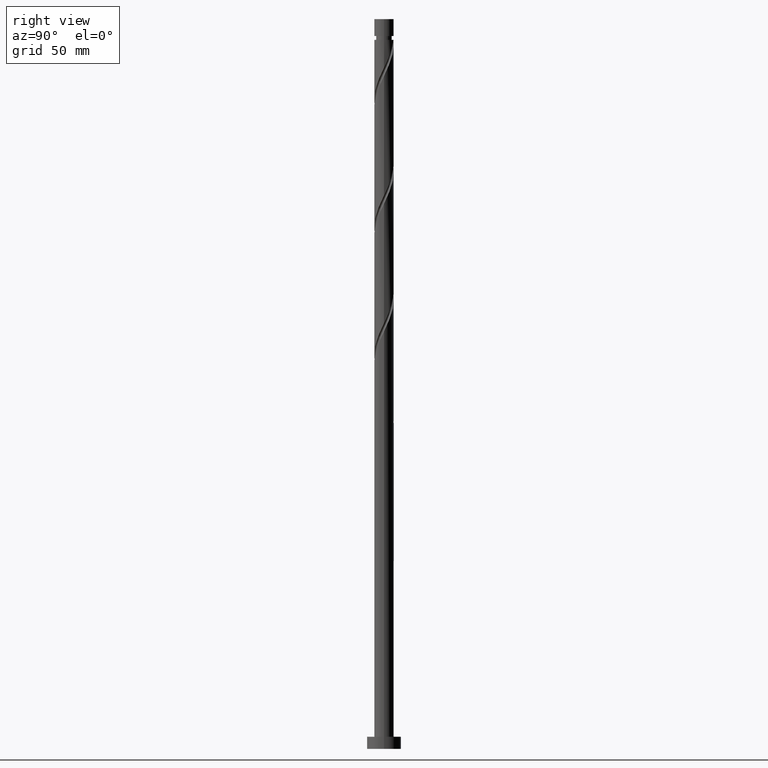
[diagram: clean part render]
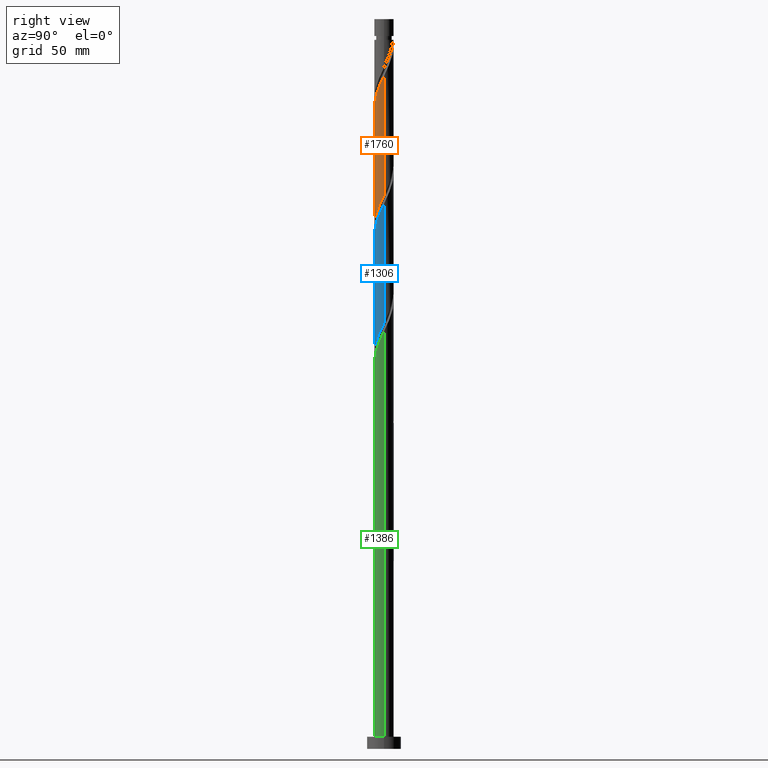
[diagram: same view with three faces highlighted in distinct colors, each labeled with its STEP entity id]
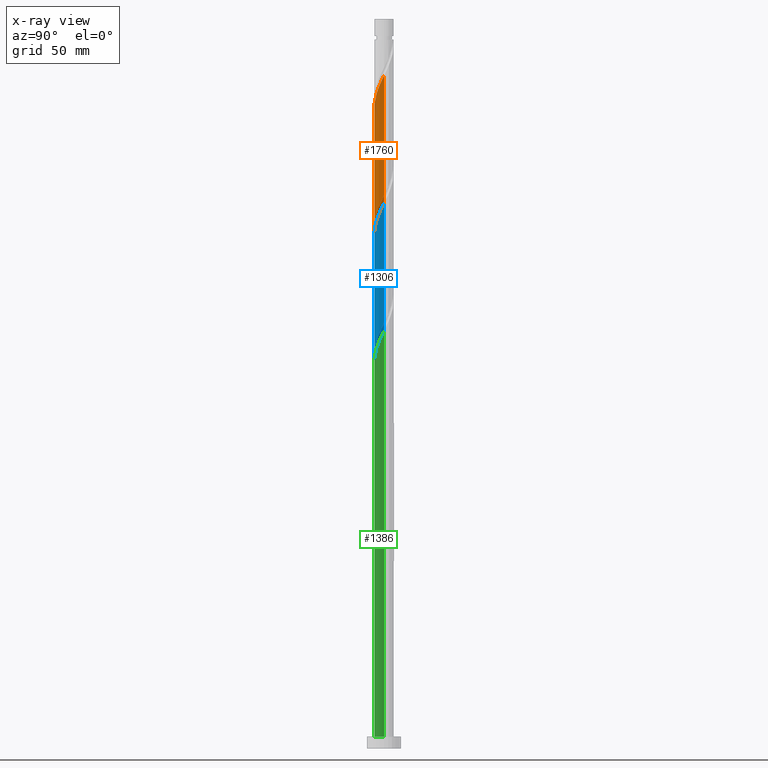
[diagram: x-ray of the same camera — body ghosted, the three highlighted faces saturated]
A machine part, right view with three faces highlighted in distinct colors.
The next image is the same camera in x-ray (body ghosted, the three faces saturated) — at least one of them is partly hidden behind the body in this view.
Their STEP definitions:

[orange] entity #1760 — the highlighted cylindrical surface (edge-blend (fillet) strip) has radius 4 mm, axis along (-0, -0, -1).
#11 = VERTEX_POINT ( 'NONE', #677 ) ;
#25 = CARTESIAN_POINT ( 'NONE',  ( -3.766332957902735590, -1.420513679056759626, 204.2666729475623697 ) ) ;
#28 = ORIENTED_EDGE ( 'NONE', *, *, #444, .F. ) ;
#49 = CARTESIAN_POINT ( 'NONE',  ( 3.066410025678347306, -2.568487795263851847, 270.8291729475624265 ) ) ;
#51 = CARTESIAN_POINT ( 'NONE',  ( -2.222986362731496524, -3.355809096668280755, 258.6416729475624265 ) ) ;
#63 = CARTESIAN_POINT ( 'NONE',  ( -3.999999999999998224, 2.194088707664344929E-15, 201.2536900254683871 ) ) ;
#75 = CARTESIAN_POINT ( 'NONE',  ( -2.777010954688412969, -2.913989227796199177, 208.0166729475624265 ) ) ;
#162 = CARTESIAN_POINT ( 'NONE',  ( -4.000000000000000000, 0.000000000000000000, 300.0000000000000000 ) ) ;
#170 = CARTESIAN_POINT ( 'NONE',  ( -1.237667874093733467, -3.830313472238014771, 211.7666729475623981 ) ) ;
#191 = CARTESIAN_POINT ( 'NONE',  ( -2.913989227796204950, -2.777010954688416078, 256.7666729475624265 ) ) ;
#204 = CARTESIAN_POINT ( 'NONE',  ( -2.417986421170494449, -3.186430866508027648, 208.9541729475624265 ) ) ;
#205 = CARTESIAN_POINT ( 'NONE',  ( -3.458872505219861004, -2.058961887652579037, 254.8916729475624265 ) ) ;
#235 = ORIENTED_EDGE ( 'NONE', *, *, #1581, .F. ) ;
#270 = CARTESIAN_POINT ( 'NONE',  ( 4.000000000000000000, 4.898587196589412829E-16, 300.0000000000000000 ) ) ;
#302 = CARTESIAN_POINT ( 'NONE',  ( 3.877165057846941654, -0.9836620935111636266, 274.5791729475624265 ) ) ;
#327 = CARTESIAN_POINT ( 'NONE',  ( 3.458872505219854787, -2.058961887652576817, 223.0166729475624265 ) ) ;
#334 = CARTESIAN_POINT ( 'NONE',  ( -0.09624924134435075551, -3.998841842776565958, 263.3291729475624265 ) ) ;
#348 = CARTESIAN_POINT ( 'NONE',  ( -0.7959899496852986811, -3.919999999999999041, 212.7041729475624265 ) ) ;
#349 = CARTESIAN_POINT ( 'NONE',  ( -3.830313472238021433, -1.237667874093734577, 253.0166729475624265 ) ) ;
#443 = CARTESIAN_POINT ( 'NONE',  ( -4.000000000000005329, 4.955356809146651200E-15, 250.4046558696563238 ) ) ;
#444 = EDGE_CURVE ( 'NONE', #1253, #11, #839, .T. ) ;
#452 = CARTESIAN_POINT ( 'NONE',  ( 4.000000000000003553, -0.04813158866557803311, 276.5542931814312055 ) ) ;
#488 = CARTESIAN_POINT ( 'NONE',  ( 3.987997157791141500, -0.5468105079655644074, 275.5166729475624265 ) ) ;
#492 =( BOUNDED_CURVE ( )  B_SPLINE_CURVE ( 2, ( #626, #1218, #1676, #349, #929, #205, #1526, #191, #1373, #51, #1540, #1801, #1664, #1770, #334, #1634, #614, #794, #1207, #1512, #1357, #1074, #49, #1319, #1227, #1922, #302, #488, #1173, #452, #895 ),
 .UNSPECIFIED., .F., .T. ) 
 B_SPLINE_CURVE_WITH_KNOTS ( ( 3, 2, 2, 2, 2, 2, 2, 2, 2, 2, 2, 2, 2, 2, 2, 3 ),
 ( 0.5545303401299219725, 0.5625000000000000000, 0.5714285714285713969, 0.5803571428571427937, 0.5892857142857143016, 0.5982142857142856984, 0.6071428571428572063, 0.6160714285714286031, 0.6250000000000000000, 0.6339285714285713969, 0.6428571428571427937, 0.6517857142857143016, 0.6607142857142856984, 0.6696428571428572063, 0.6785714285714286031, 0.6795303401299217505 ),
 .UNSPECIFIED. ) 
 CURVE ( )  GEOMETRIC_REPRESENTATION_ITEM ( )  RATIONAL_B_SPLINE_CURVE ( ( 0.9079949616362096299, 0.9039886423360725676, 0.9090909090909393697, 0.9033747362666143532, 0.9090909090909393697, 0.9033747362666143532, 0.9090909090909393697, 0.9033747362666143532, 0.9090909090909393697, 0.9033747362666143532, 0.9090909090909393697, 0.9033747362666143532, 0.9090909090909393697, 0.9033747362666143532, 0.9090909090909393697, 0.9033747362666143532, 0.9090909090909393697, 0.9033747362666143532, 0.9090909090909393697, 0.9033747362666143532, 0.9090909090909393697, 0.9033747362666143532, 0.9090909090909393697, 0.9033747362666143532, 0.9090909090909393697, 0.9033747362666143532, 0.9090909090909393697, 0.9033747362666143532, 0.9090909090909393697, 0.9084770030214813774, 0.9079949616362098519 ) ) 
 REPRESENTATION_ITEM ( '' )  );
#501 = CARTESIAN_POINT ( 'NONE',  ( -3.561071027285505952, -1.821750020894125521, 205.2041729475623697 ) ) ;
#506 = ORIENTED_EDGE ( 'NONE', *, *, #1721, .F. ) ;
#515 = DIRECTION ( 'NONE',  ( -1.000000000000000000, 0.000000000000000000, 0.000000000000000000 ) ) ;
#614 = CARTESIAN_POINT ( 'NONE',  ( 0.7959899496852981260, -3.920000000000005258, 265.2041729475624834 ) ) ;
#615 = CARTESIAN_POINT ( 'NONE',  ( -3.355809096668276315, -2.222986362731492083, 206.1416729475623697 ) ) ;
#625 = CARTESIAN_POINT ( 'NONE',  ( -2.058961887652576817, -3.458872505219855675, 209.8916729475623981 ) ) ;
#626 = CARTESIAN_POINT ( 'NONE',  ( -4.000000000000005329, 4.955356809146651200E-15, 250.4046558696563238 ) ) ;
#636 = CARTESIAN_POINT ( 'NONE',  ( 3.919999999999999041, -0.7959899496852987921, 225.8291729475623981 ) ) ;
#649 = CARTESIAN_POINT ( 'NONE',  ( 0.000000000000000000, 0.000000000000000000, 300.0000000000000000 ) ) ;
#653 = ORIENTED_EDGE ( 'NONE', *, *, #1617, .T. ) ;
#662 = CARTESIAN_POINT ( 'NONE',  ( -3.066410025678343754, -2.568487795263845186, 207.0791729475623981 ) ) ;
#677 = CARTESIAN_POINT ( 'NONE',  ( 3.999999999999998224, -2.634399026549366747E-15, 227.5036900254684440 ) ) ;
#697 = CARTESIAN_POINT ( 'NONE',  ( 4.000000000000005329, 2.238866028228908593E-17, 276.6546558696563238 ) ) ;
#748 = EDGE_LOOP ( 'NONE', ( #28, #235, #653, #506 ) ) ;
#753 = DIRECTION ( 'NONE',  ( -0.000000000000000000, -0.000000000000000000, -1.000000000000000000 ) ) ;
#785 = CARTESIAN_POINT ( 'NONE',  ( 3.999999999999998224, -2.634399026549366747E-15, 227.5036900254684724 ) ) ;
#794 = CARTESIAN_POINT ( 'NONE',  ( 1.237667874093734577, -3.830313472238021433, 266.1416729475624265 ) ) ;
#795 = CARTESIAN_POINT ( 'NONE',  ( 2.222986362731492083, -3.355809096668278091, 219.2666729475624265 ) ) ;
#808 = CARTESIAN_POINT ( 'NONE',  ( -0.3543120252768633960, -4.009686527761982866, 213.6416729475623697 ) ) ;
#825 = DIRECTION ( 'NONE',  ( -0.000000000000000000, -0.000000000000000000, -1.000000000000000000 ) ) ;
#839 = LINE ( 'NONE', #270, #860 ) ;
#860 = VECTOR ( 'NONE', #825, 1000.000000000000000 ) ;
#881 = LINE ( 'NONE', #162, #1419 ) ;
#895 = CARTESIAN_POINT ( 'NONE',  ( 4.000000000000005329, 2.238866028228908593E-17, 276.6546558696563238 ) ) ;
#907 = CARTESIAN_POINT ( 'NONE',  ( 1.821750020894124855, -3.561071027285505952, 218.3291729475623697 ) ) ;
#928 = CARTESIAN_POINT ( 'NONE',  ( -1.648314880873155364, -3.644592988728935445, 210.8291729475623981 ) ) ;
#929 = CARTESIAN_POINT ( 'NONE',  ( -3.644592988728940774, -1.648314880873156918, 253.9541729475624550 ) ) ;
#952 = CARTESIAN_POINT ( 'NONE',  ( 2.913989227796199177, -2.777010954688412969, 221.1416729475624265 ) ) ;
#1052 = CARTESIAN_POINT ( 'NONE',  ( 2.568487795263845186, -3.066410025678344198, 220.2041729475624550 ) ) ;
#1074 = CARTESIAN_POINT ( 'NONE',  ( 2.777010954688416078, -2.913989227796204950, 269.8916729475624265 ) ) ;
#1075 = FACE_OUTER_BOUND ( 'NONE', #748, .T. ) ;
#1085 = CYLINDRICAL_SURFACE ( 'NONE', #1589, 4.000000000000000000 ) ;
#1173 = CARTESIAN_POINT ( 'NONE',  ( 3.998841842776565958, -0.09624924134435110246, 276.4541729475624265 ) ) ;
#1207 = CARTESIAN_POINT ( 'NONE',  ( 1.648314880873156474, -3.644592988728941219, 267.0791729475624265 ) ) ;
#1218 = CARTESIAN_POINT ( 'NONE',  ( -4.000000000000006217, -0.4020151261036811197, 251.2429269486198393 ) ) ;
#1227 = CARTESIAN_POINT ( 'NONE',  ( 3.561071027285510837, -1.821750020894129518, 272.7041729475625402 ) ) ;
#1228 = CARTESIAN_POINT ( 'NONE',  ( 3.644592988728935445, -1.648314880873155586, 223.9541729475623981 ) ) ;
#1240 = CARTESIAN_POINT ( 'NONE',  ( 1.420513679056759626, -3.766332957902735590, 217.3916729475624550 ) ) ;
#1253 = VERTEX_POINT ( 'NONE', #697 ) ;
#1319 = CARTESIAN_POINT ( 'NONE',  ( 3.355809096668280755, -2.222986362731496524, 271.7666729475624265 ) ) ;
#1337 = VERTEX_POINT ( 'NONE', #443 ) ;
#1346 = CARTESIAN_POINT ( 'NONE',  ( -3.999999999999998224, 2.194088707664344929E-15, 201.2536900254683871 ) ) ;
#1357 = CARTESIAN_POINT ( 'NONE',  ( 2.417986421170496669, -3.186430866508033866, 268.9541729475624834 ) ) ;
#1358 = CARTESIAN_POINT ( 'NONE',  ( -3.877165057846935436, -0.9836620935111604069, 203.3291729475623697 ) ) ;
#1371 = CARTESIAN_POINT ( 'NONE',  ( 3.999999999999999112, -0.4020151261036875590, 226.6654189465048148 ) ) ;
#1372 = CARTESIAN_POINT ( 'NONE',  ( -3.987997157791136171, -0.5468105079655618539, 202.3916729475623981 ) ) ;
#1373 = CARTESIAN_POINT ( 'NONE',  ( -2.568487795263851847, -3.066410025678347306, 257.7041729475624265 ) ) ;
#1385 = CARTESIAN_POINT ( 'NONE',  ( -4.000000000000000000, -0.04813158866554292925, 201.3540527136935054 ) ) ;
#1419 = VECTOR ( 'NONE', #753, 1000.000000000000000 ) ;
#1502 = VERTEX_POINT ( 'NONE', #1346 ) ;
#1512 = CARTESIAN_POINT ( 'NONE',  ( 2.058961887652579037, -3.458872505219861448, 268.0166729475624265 ) ) ;
#1525 = CARTESIAN_POINT ( 'NONE',  ( 0.9836620935111604069, -3.877165057846935436, 216.4541729475623697 ) ) ;
#1526 = CARTESIAN_POINT ( 'NONE',  ( -3.186430866508033866, -2.417986421170497557, 255.8291729475624550 ) ) ;
#1540 = CARTESIAN_POINT ( 'NONE',  ( -1.821750020894129074, -3.561071027285510837, 259.5791729475624265 ) ) ;
#1554 = CARTESIAN_POINT ( 'NONE',  ( 0.09624924134434909018, -3.998841842776559741, 214.5791729475623413 ) ) ;
#1581 = EDGE_CURVE ( 'NONE', #1337, #1253, #492, .T. ) ;
#1589 = AXIS2_PLACEMENT_3D ( 'NONE', #649, #1835, #515 ) ;
#1617 = EDGE_CURVE ( 'NONE', #1337, #1502, #881, .T. ) ;
#1634 = CARTESIAN_POINT ( 'NONE',  ( 0.3543120252768625633, -4.009686527761989971, 264.2666729475623697 ) ) ;
#1657 = CARTESIAN_POINT ( 'NONE',  ( 3.830313472238014771, -1.237667874093733467, 224.8916729475624265 ) ) ;
#1664 = CARTESIAN_POINT ( 'NONE',  ( -0.9836620935111634045, -3.877165057846941654, 261.4541729475625402 ) ) ;
#1675 = CARTESIAN_POINT ( 'NONE',  ( 0.5468105079655616318, -3.987997157791136171, 215.5166729475623981 ) ) ;
#1676 = CARTESIAN_POINT ( 'NONE',  ( -3.920000000000005258, -0.7959899496852985701, 252.0791729475624265 ) ) ;
#1721 = EDGE_CURVE ( 'NONE', #11, #1502, #1890, .T. ) ;
#1760 = ADVANCED_FACE ( 'NONE', ( #1075 ), #1085, .T. ) ;
#1770 = CARTESIAN_POINT ( 'NONE',  ( -0.5468105079655641854, -3.987997157791142389, 262.3916729475623697 ) ) ;
#1801 = CARTESIAN_POINT ( 'NONE',  ( -1.420513679056762735, -3.766332957902740919, 260.5166729475624265 ) ) ;
#1813 = CARTESIAN_POINT ( 'NONE',  ( -3.998841842776559741, -0.09624924134434931222, 201.4541729475623981 ) ) ;
#1823 = CARTESIAN_POINT ( 'NONE',  ( 3.186430866508027648, -2.417986421170494449, 222.0791729475623981 ) ) ;
#1835 = DIRECTION ( 'NONE',  ( -0.000000000000000000, -0.000000000000000000, -1.000000000000000000 ) ) ;
#1890 =( BOUNDED_CURVE ( )  B_SPLINE_CURVE ( 2, ( #785, #1371, #636, #1657, #1228, #327, #1823, #952, #1052, #795, #907, #1240, #1525, #1675, #1554, #808, #348, #170, #928, #625, #204, #75, #662, #615, #501, #25, #1358, #1372, #1813, #1385, #63 ),
 .UNSPECIFIED., .F., .T. ) 
 B_SPLINE_CURVE_WITH_KNOTS ( ( 3, 2, 2, 2, 2, 2, 2, 2, 2, 2, 2, 2, 2, 2, 2, 3 ),
 ( 0.5545303401299220836, 0.5625000000000000000, 0.5714285714285713969, 0.5803571428571429047, 0.5892857142857143016, 0.5982142857142856984, 0.6071428571428570953, 0.6160714285714286031, 0.6250000000000000000, 0.6339285714285713969, 0.6428571428571429047, 0.6517857142857143016, 0.6607142857142856984, 0.6696428571428570953, 0.6785714285714286031, 0.6795303401299224166 ),
 .UNSPECIFIED. ) 
 CURVE ( )  GEOMETRIC_REPRESENTATION_ITEM ( )  RATIONAL_B_SPLINE_CURVE ( ( 0.9079949616362036346, 0.9039886423360665724, 0.9090909090909334855, 0.9033747362666083580, 0.9090909090909334855, 0.9033747362666083580, 0.9090909090909334855, 0.9033747362666083580, 0.9090909090909334855, 0.9033747362666083580, 0.9090909090909334855, 0.9033747362666083580, 0.9090909090909334855, 0.9033747362666083580, 0.9090909090909334855, 0.9033747362666083580, 0.9090909090909334855, 0.9033747362666083580, 0.9090909090909334855, 0.9033747362666083580, 0.9090909090909334855, 0.9033747362666083580, 0.9090909090909334855, 0.9033747362666083580, 0.9090909090909334855, 0.9033747362666083580, 0.9090909090909334855, 0.9033747362666083580, 0.9090909090909334855, 0.9084770030214749381, 0.9079949616362031906 ) ) 
 REPRESENTATION_ITEM ( '' )  );
#1922 = CARTESIAN_POINT ( 'NONE',  ( 3.766332957902740919, -1.420513679056762735, 273.6416729475623129 ) ) ;

[blue] entity #1306 — the highlighted cylindrical surface (edge-blend (fillet) strip) has radius 4 mm, axis along (-0, -0, -1).
#71 = CARTESIAN_POINT ( 'NONE',  ( 1.648314880873156474, -3.644592988728941219, 214.5791729475624550 ) ) ;
#89 = CARTESIAN_POINT ( 'NONE',  ( -1.648314880873155364, -3.644592988728935445, 158.3291729475624550 ) ) ;
#135 = CARTESIAN_POINT ( 'NONE',  ( 2.568487795263845186, -3.066410025678344198, 167.7041729475624265 ) ) ;
#148 = CARTESIAN_POINT ( 'NONE',  ( -4.000000000000000000, 0.000000000000000000, 300.0000000000000000 ) ) ;
#185 = ORIENTED_EDGE ( 'NONE', *, *, #1886, .F. ) ;
#216 = CARTESIAN_POINT ( 'NONE',  ( 3.355809096668280755, -2.222986362731496524, 219.2666729475624265 ) ) ;
#231 = CARTESIAN_POINT ( 'NONE',  ( -3.561071027285505952, -1.821750020894125521, 152.7041729475624550 ) ) ;
#243 = CARTESIAN_POINT ( 'NONE',  ( 1.237667874093734577, -3.830313472238021433, 213.6416729475624265 ) ) ;
#245 = CARTESIAN_POINT ( 'NONE',  ( 2.222986362731492083, -3.355809096668278091, 166.7666729475623981 ) ) ;
#271 = CARTESIAN_POINT ( 'NONE',  ( 4.000000000000005329, 6.119567143825683200E-16, 224.1546558696563238 ) ) ;
#287 = CARTESIAN_POINT ( 'NONE',  ( 2.913989227796199177, -2.777010954688412969, 168.6416729475623413 ) ) ;
#382 = CARTESIAN_POINT ( 'NONE',  ( -2.568487795263851847, -3.066410025678347306, 205.2041729475624834 ) ) ;
#384 = CARTESIAN_POINT ( 'NONE',  ( 0.5468105079655616318, -3.987997157791136171, 163.0166729475625118 ) ) ;
#393 = CARTESIAN_POINT ( 'NONE',  ( -0.9836620935111634045, -3.877165057846941654, 208.9541729475624265 ) ) ;
#395 = CARTESIAN_POINT ( 'NONE',  ( 0.09624924134434909018, -3.998841842776559741, 162.0791729475624265 ) ) ;
#404 = CARTESIAN_POINT ( 'NONE',  ( 3.766332957902740919, -1.420513679056762735, 221.1416729475624834 ) ) ;
#439 = CARTESIAN_POINT ( 'NONE',  ( 3.999999999999998224, -2.634399026549366747E-15, 175.0036900254684156 ) ) ;
#510 = VERTEX_POINT ( 'NONE', #862 ) ;
#524 = CARTESIAN_POINT ( 'NONE',  ( -2.913989227796204950, -2.777010954688416078, 204.2666729475623981 ) ) ;
#527 = CARTESIAN_POINT ( 'NONE',  ( -3.877165057846935436, -0.9836620935111604069, 150.8291729475624265 ) ) ;
#565 = CARTESIAN_POINT ( 'NONE',  ( 0.3543120252768625633, -4.009686527761989971, 211.7666729475624550 ) ) ;
#571 = CARTESIAN_POINT ( 'NONE',  ( -3.987997157791136171, -0.5468105079655618539, 149.8916729475623981 ) ) ;
#578 = CARTESIAN_POINT ( 'NONE',  ( -2.417986421170494449, -3.186430866508027648, 156.4541729475623981 ) ) ;
#584 = CARTESIAN_POINT ( 'NONE',  ( -3.999999999999998224, 2.194088707664344929E-15, 148.7536900254684724 ) ) ;
#630 = FACE_OUTER_BOUND ( 'NONE', #1714, .T. ) ;
#652 = EDGE_CURVE ( 'NONE', #510, #1390, #1478, .T. ) ;
#660 = CARTESIAN_POINT ( 'NONE',  ( 3.561071027285510837, -1.821750020894129518, 220.2041729475624550 ) ) ;
#665 = ORIENTED_EDGE ( 'NONE', *, *, #652, .T. ) ;
#673 = CARTESIAN_POINT ( 'NONE',  ( -0.7959899496852986811, -3.919999999999999041, 160.2041729475624265 ) ) ;
#691 = CARTESIAN_POINT ( 'NONE',  ( -3.920000000000005258, -0.7959899496852985701, 199.5791729475624834 ) ) ;
#710 = LINE ( 'NONE', #1462, #1261 ) ;
#712 = CARTESIAN_POINT ( 'NONE',  ( 0.9836620935111604069, -3.877165057846935436, 163.9541729475623981 ) ) ;
#727 = CARTESIAN_POINT ( 'NONE',  ( -2.777010954688412969, -2.913989227796199177, 155.5166729475624265 ) ) ;
#742 = DIRECTION ( 'NONE',  ( -0.000000000000000000, -0.000000000000000000, -1.000000000000000000 ) ) ;
#792 = VECTOR ( 'NONE', #742, 1000.000000000000000 ) ;
#819 = CARTESIAN_POINT ( 'NONE',  ( -2.058961887652576817, -3.458872505219855675, 157.3916729475624550 ) ) ;
#848 = CARTESIAN_POINT ( 'NONE',  ( -1.420513679056762735, -3.766332957902740919, 208.0166729475624265 ) ) ;
#862 = CARTESIAN_POINT ( 'NONE',  ( -4.000000000000005329, 9.933102278575590160E-15, 197.9046558696562954 ) ) ;
#863 = CARTESIAN_POINT ( 'NONE',  ( -3.766332957902735590, -1.420513679056759626, 151.7666729475624265 ) ) ;
#878 = CARTESIAN_POINT ( 'NONE',  ( -3.355809096668276315, -2.222986362731492083, 153.6416729475624265 ) ) ;
#906 = EDGE_CURVE ( 'NONE', #510, #1724, #1609, .T. ) ;
#935 = EDGE_CURVE ( 'NONE', #1724, #942, #710, .T. ) ;
#942 = VERTEX_POINT ( 'NONE', #1750 ) ;
#948 = CARTESIAN_POINT ( 'NONE',  ( -1.821750020894129074, -3.561071027285510837, 207.0791729475624550 ) ) ;
#961 = CARTESIAN_POINT ( 'NONE',  ( 4.000000000000004441, -0.04813158866556687537, 224.0542931814312340 ) ) ;
#964 = CARTESIAN_POINT ( 'NONE',  ( 1.420513679056759626, -3.766332957902735590, 164.8916729475623981 ) ) ;
#972 = CARTESIAN_POINT ( 'NONE',  ( -0.5468105079655641854, -3.987997157791142389, 209.8916729475624834 ) ) ;
#974 = CARTESIAN_POINT ( 'NONE',  ( 3.919999999999999041, -0.7959899496852987921, 173.3291729475624550 ) ) ;
#993 = CARTESIAN_POINT ( 'NONE',  ( -3.830313472238021433, -1.237667874093734577, 200.5166729475624550 ) ) ;
#1018 = CARTESIAN_POINT ( 'NONE',  ( 3.830313472238014771, -1.237667874093733467, 172.3916729475623981 ) ) ;
#1071 = AXIS2_PLACEMENT_3D ( 'NONE', #1818, #1405, #1571 ) ;
#1106 = CARTESIAN_POINT ( 'NONE',  ( 3.987997157791141500, -0.5468105079655644074, 223.0166729475624265 ) ) ;
#1119 = CARTESIAN_POINT ( 'NONE',  ( -3.458872505219861004, -2.058961887652579037, 202.3916729475624265 ) ) ;
#1122 = CARTESIAN_POINT ( 'NONE',  ( -1.237667874093733467, -3.830313472238014771, 159.2666729475624834 ) ) ;
#1132 = CARTESIAN_POINT ( 'NONE',  ( 2.417986421170496669, -3.186430866508033866, 216.4541729475624550 ) ) ;
#1162 = CARTESIAN_POINT ( 'NONE',  ( 3.644592988728935445, -1.648314880873155586, 171.4541729475623981 ) ) ;
#1249 = CARTESIAN_POINT ( 'NONE',  ( 3.877165057846941654, -0.9836620935111636266, 222.0791729475623981 ) ) ;
#1261 = VECTOR ( 'NONE', #1453, 1000.000000000000000 ) ;
#1264 = CARTESIAN_POINT ( 'NONE',  ( -3.066410025678343754, -2.568487795263845186, 154.5791729475624550 ) ) ;
#1303 = ORIENTED_EDGE ( 'NONE', *, *, #935, .F. ) ;
#1306 = ADVANCED_FACE ( 'NONE', ( #630 ), #1560, .T. ) ;
#1312 = CARTESIAN_POINT ( 'NONE',  ( -3.998841842776559741, -0.09624924134434931222, 148.9541729475624550 ) ) ;
#1316 = CARTESIAN_POINT ( 'NONE',  ( -3.999999999999998224, 2.194088707664344929E-15, 148.7536900254684724 ) ) ;
#1318 = ORIENTED_EDGE ( 'NONE', *, *, #906, .F. ) ;
#1390 = VERTEX_POINT ( 'NONE', #1316 ) ;
#1395 = CARTESIAN_POINT ( 'NONE',  ( -2.222986362731496524, -3.355809096668280755, 206.1416729475623981 ) ) ;
#1398 = CARTESIAN_POINT ( 'NONE',  ( 4.000000000000005329, 6.119567143825683200E-16, 224.1546558696563523 ) ) ;
#1405 = DIRECTION ( 'NONE',  ( -0.000000000000000000, -0.000000000000000000, -1.000000000000000000 ) ) ;
#1418 = CARTESIAN_POINT ( 'NONE',  ( 2.058961887652579037, -3.458872505219861448, 215.5166729475623981 ) ) ;
#1446 = CARTESIAN_POINT ( 'NONE',  ( 1.821750020894124855, -3.561071027285505952, 165.8291729475624550 ) ) ;
#1453 = DIRECTION ( 'NONE',  ( -0.000000000000000000, -0.000000000000000000, -1.000000000000000000 ) ) ;
#1462 = CARTESIAN_POINT ( 'NONE',  ( 4.000000000000000000, 4.898587196589412829E-16, 300.0000000000000000 ) ) ;
#1478 = LINE ( 'NONE', #148, #792 ) ;
#1552 = CARTESIAN_POINT ( 'NONE',  ( 2.777010954688416078, -2.913989227796204950, 217.3916729475623981 ) ) ;
#1560 = CYLINDRICAL_SURFACE ( 'NONE', #1071, 4.000000000000000000 ) ;
#1565 = CARTESIAN_POINT ( 'NONE',  ( 3.458872505219854787, -2.058961887652576817, 170.5166729475624265 ) ) ;
#1571 = DIRECTION ( 'NONE',  ( -1.000000000000000000, 0.000000000000000000, 0.000000000000000000 ) ) ;
#1574 = CARTESIAN_POINT ( 'NONE',  ( -0.09624924134435075551, -3.998841842776565958, 210.8291729475624550 ) ) ;
#1577 = CARTESIAN_POINT ( 'NONE',  ( 3.999999999999998224, -0.4020151261036931656, 174.1654189465048717 ) ) ;
#1597 = CARTESIAN_POINT ( 'NONE',  ( -3.644592988728940774, -1.648314880873156918, 201.4541729475624550 ) ) ;
#1609 =( BOUNDED_CURVE ( )  B_SPLINE_CURVE ( 2, ( #1862, #1894, #691, #993, #1597, #1119, #1718, #524, #382, #1395, #948, #848, #393, #972, #1574, #565, #1697, #243, #71, #1418, #1132, #1552, #1728, #216, #660, #404, #1249, #1106, #1709, #961, #271 ),
 .UNSPECIFIED., .F., .T. ) 
 B_SPLINE_CURVE_WITH_KNOTS ( ( 3, 2, 2, 2, 2, 2, 2, 2, 2, 2, 2, 2, 2, 2, 2, 3 ),
 ( 0.3045303401299217505, 0.3125000000000000000, 0.3214285714285713969, 0.3303571428571429047, 0.3392857142857143016, 0.3482142857142856984, 0.3571428571428570953, 0.3660714285714286031, 0.3750000000000000000, 0.3839285714285713969, 0.3928571428571429047, 0.4017857142857143016, 0.4107142857142856984, 0.4196428571428570953, 0.4285714285714286031, 0.4295303401299219725 ),
 .UNSPECIFIED. ) 
 CURVE ( )  GEOMETRIC_REPRESENTATION_ITEM ( )  RATIONAL_B_SPLINE_CURVE ( ( 0.9079949616362098519, 0.9039886423360724566, 0.9090909090909393697, 0.9033747362666143532, 0.9090909090909393697, 0.9033747362666143532, 0.9090909090909393697, 0.9033747362666143532, 0.9090909090909393697, 0.9033747362666143532, 0.9090909090909393697, 0.9033747362666143532, 0.9090909090909393697, 0.9033747362666143532, 0.9090909090909393697, 0.9033747362666143532, 0.9090909090909393697, 0.9033747362666143532, 0.9090909090909393697, 0.9033747362666143532, 0.9090909090909393697, 0.9033747362666143532, 0.9090909090909393697, 0.9033747362666143532, 0.9090909090909393697, 0.9033747362666143532, 0.9090909090909393697, 0.9033747362666143532, 0.9090909090909393697, 0.9084770030214812664, 0.9079949616362096299 ) ) 
 REPRESENTATION_ITEM ( '' )  );
#1671 =( BOUNDED_CURVE ( )  B_SPLINE_CURVE ( 2, ( #439, #1577, #974, #1018, #1162, #1565, #1849, #287, #135, #245, #1446, #964, #712, #384, #395, #1917, #673, #1122, #89, #819, #578, #727, #1264, #878, #231, #863, #527, #571, #1312, #1720, #584 ),
 .UNSPECIFIED., .F., .T. ) 
 B_SPLINE_CURVE_WITH_KNOTS ( ( 3, 2, 2, 2, 2, 2, 2, 2, 2, 2, 2, 2, 2, 2, 2, 3 ),
 ( 0.8045303401299221946, 0.8125000000000000000, 0.8214285714285713969, 0.8303571428571429047, 0.8392857142857143016, 0.8482142857142856984, 0.8571428571428570953, 0.8660714285714286031, 0.8750000000000000000, 0.8839285714285713969, 0.8928571428571429047, 0.9017857142857143016, 0.9107142857142856984, 0.9196428571428570953, 0.9285714285714286031, 0.9295303401299221946 ),
 .UNSPECIFIED. ) 
 CURVE ( )  GEOMETRIC_REPRESENTATION_ITEM ( )  RATIONAL_B_SPLINE_CURVE ( ( 0.9079949616362034126, 0.9039886423360666834, 0.9090909090909334855, 0.9033747362666083580, 0.9090909090909334855, 0.9033747362666083580, 0.9090909090909334855, 0.9033747362666083580, 0.9090909090909334855, 0.9033747362666083580, 0.9090909090909334855, 0.9033747362666083580, 0.9090909090909334855, 0.9033747362666083580, 0.9090909090909334855, 0.9033747362666083580, 0.9090909090909334855, 0.9033747362666083580, 0.9090909090909334855, 0.9033747362666083580, 0.9090909090909334855, 0.9033747362666083580, 0.9090909090909334855, 0.9033747362666083580, 0.9090909090909334855, 0.9033747362666083580, 0.9090909090909334855, 0.9033747362666083580, 0.9090909090909334855, 0.9084770030214751602, 0.9079949616362034126 ) ) 
 REPRESENTATION_ITEM ( '' )  );
#1697 = CARTESIAN_POINT ( 'NONE',  ( 0.7959899496852981260, -3.920000000000005258, 212.7041729475624834 ) ) ;
#1709 = CARTESIAN_POINT ( 'NONE',  ( 3.998841842776565958, -0.09624924134435110246, 223.9541729475624265 ) ) ;
#1714 = EDGE_LOOP ( 'NONE', ( #1303, #1318, #665, #185 ) ) ;
#1718 = CARTESIAN_POINT ( 'NONE',  ( -3.186430866508033866, -2.417986421170497557, 203.3291729475624550 ) ) ;
#1720 = CARTESIAN_POINT ( 'NONE',  ( -3.999999999999999112, -0.04813158866555406618, 148.8540527136935623 ) ) ;
#1724 = VERTEX_POINT ( 'NONE', #1398 ) ;
#1728 = CARTESIAN_POINT ( 'NONE',  ( 3.066410025678347306, -2.568487795263851847, 218.3291729475625118 ) ) ;
#1750 = CARTESIAN_POINT ( 'NONE',  ( 3.999999999999998224, -2.634399026549366747E-15, 175.0036900254684156 ) ) ;
#1818 = CARTESIAN_POINT ( 'NONE',  ( 0.000000000000000000, 0.000000000000000000, 300.0000000000000000 ) ) ;
#1849 = CARTESIAN_POINT ( 'NONE',  ( 3.186430866508027648, -2.417986421170494449, 169.5791729475623981 ) ) ;
#1862 = CARTESIAN_POINT ( 'NONE',  ( -4.000000000000005329, 9.933102278575590160E-15, 197.9046558696562954 ) ) ;
#1886 = EDGE_CURVE ( 'NONE', #942, #1390, #1671, .T. ) ;
#1894 = CARTESIAN_POINT ( 'NONE',  ( -4.000000000000009770, -0.4020151261036701840, 198.7429269486199246 ) ) ;
#1917 = CARTESIAN_POINT ( 'NONE',  ( -0.3543120252768633960, -4.009686527761982866, 161.1416729475623981 ) ) ;

[green] entity #1386 — the highlighted cylindrical surface (edge-blend (fillet) strip) has radius 4 mm, axis along (-0, -0, -1).
#33 = CARTESIAN_POINT ( 'NONE',  ( 4.000000000000005329, 6.119567143825683200E-16, 171.6546558696563807 ) ) ;
#43 = CARTESIAN_POINT ( 'NONE',  ( -3.644592988728940774, -1.648314880873156918, 148.9541729475624550 ) ) ;
#58 = CARTESIAN_POINT ( 'NONE',  ( -4.000000000000000000, 0.000000000000000000, 300.0000000000000000 ) ) ;
#69 = CARTESIAN_POINT ( 'NONE',  ( 2.777010954688416078, -2.913989227796204950, 164.8916729475623981 ) ) ;
#83 = ORIENTED_EDGE ( 'NONE', *, *, #163, .T. ) ;
#84 = CARTESIAN_POINT ( 'NONE',  ( -1.420513679056762735, -3.766332957902740919, 155.5166729475623981 ) ) ;
#96 = CARTESIAN_POINT ( 'NONE',  ( 4.000000000000000000, 4.898587196589412829E-16, 5.000000000000000000 ) ) ;
#152 = EDGE_CURVE ( 'NONE', #876, #779, #1438, .T. ) ;
#163 = EDGE_CURVE ( 'NONE', #1877, #876, #1521, .T. ) ;
#172 = DIRECTION ( 'NONE',  ( -0.000000000000000000, -0.000000000000000000, -1.000000000000000000 ) ) ;
#198 = CARTESIAN_POINT ( 'NONE',  ( -3.830313472238021433, -1.237667874093734577, 148.0166729475624265 ) ) ;
#214 = CARTESIAN_POINT ( 'NONE',  ( 1.648314880873156474, -3.644592988728941219, 162.0791729475624550 ) ) ;
#219 = EDGE_CURVE ( 'NONE', #1877, #822, #1001, .T. ) ;
#313 = ORIENTED_EDGE ( 'NONE', *, *, #219, .F. ) ;
#474 = CARTESIAN_POINT ( 'NONE',  ( 3.877165057846941654, -0.9836620935111636266, 169.5791729475624550 ) ) ;
#496 = CARTESIAN_POINT ( 'NONE',  ( -0.5468105079655641854, -3.987997157791142389, 157.3916729475623981 ) ) ;
#522 = CARTESIAN_POINT ( 'NONE',  ( 3.766332957902740919, -1.420513679056762735, 168.6416729475624550 ) ) ;
#559 = CYLINDRICAL_SURFACE ( 'NONE', #1450, 4.000000000000000000 ) ;
#575 = VECTOR ( 'NONE', #1695, 1000.000000000000000 ) ;
#616 = LINE ( 'NONE', #1514, #1381 ) ;
#621 = CARTESIAN_POINT ( 'NONE',  ( 4.000000000000005329, -0.04813158866555574539, 171.5542931814312624 ) ) ;
#631 = DIRECTION ( 'NONE',  ( 0.000000000000000000, 0.000000000000000000, 1.000000000000000000 ) ) ;
#645 = CARTESIAN_POINT ( 'NONE',  ( -3.186430866508033866, -2.417986421170497557, 150.8291729475624834 ) ) ;
#658 = CARTESIAN_POINT ( 'NONE',  ( -3.920000000000005258, -0.7959899496852985701, 147.0791729475624550 ) ) ;
#669 = CARTESIAN_POINT ( 'NONE',  ( 3.355809096668280755, -2.222986362731496524, 166.7666729475623697 ) ) ;
#671 = CARTESIAN_POINT ( 'NONE',  ( 4.000000000000005329, 6.119567143825683200E-16, 171.6546558696563807 ) ) ;
#724 = FACE_OUTER_BOUND ( 'NONE', #1516, .T. ) ;
#731 = DIRECTION ( 'NONE',  ( -1.000000000000000000, 0.000000000000000000, 0.000000000000000000 ) ) ;
#774 = CARTESIAN_POINT ( 'NONE',  ( -4.000000000000005329, -1.208987655243610677E-15, 145.4046558696563807 ) ) ;
#779 = VERTEX_POINT ( 'NONE', #96 ) ;
#781 = CARTESIAN_POINT ( 'NONE',  ( -4.000000000000005329, -1.208987655243610677E-15, 145.4046558696563807 ) ) ;
#790 = DIRECTION ( 'NONE',  ( 1.000000000000000000, 0.000000000000000000, 0.000000000000000000 ) ) ;
#803 = CARTESIAN_POINT ( 'NONE',  ( 2.058961887652579037, -3.458872505219861448, 163.0166729475624265 ) ) ;
#822 = VERTEX_POINT ( 'NONE', #671 ) ;
#875 = DIRECTION ( 'NONE',  ( -0.000000000000000000, -0.000000000000000000, -1.000000000000000000 ) ) ;
#876 = VERTEX_POINT ( 'NONE', #1430 ) ;
#946 = CARTESIAN_POINT ( 'NONE',  ( -2.568487795263851847, -3.066410025678347306, 152.7041729475624550 ) ) ;
#1001 =( BOUNDED_CURVE ( )  B_SPLINE_CURVE ( 2, ( #781, #1808, #658, #198, #43, #1662, #645, #1406, #946, #1235, #1222, #84, #1819, #496, #1549, #1060, #1830, #1094, #214, #803, #1393, #69, #1247, #669, #1258, #522, #474, #1103, #1706, #621, #33 ),
 .UNSPECIFIED., .F., .T. ) 
 B_SPLINE_CURVE_WITH_KNOTS ( ( 3, 2, 2, 2, 2, 2, 2, 2, 2, 2, 2, 2, 2, 2, 2, 3 ),
 ( 0.05453034012992216684, 0.06250000000000000000, 0.07142857142857139685, 0.08035714285714290472, 0.08928571428571430157, 0.09821428571428569843, 0.1071428571428570953, 0.1160714285714286031, 0.1250000000000000000, 0.1339285714285713969, 0.1428571428571429047, 0.1517857142857143016, 0.1607142857142856984, 0.1696428571428570953, 0.1785714285714286031, 0.1795303401299221946 ),
 .UNSPECIFIED. ) 
 CURVE ( )  GEOMETRIC_REPRESENTATION_ITEM ( )  RATIONAL_B_SPLINE_CURVE ( ( 0.9079949616362095188, 0.9039886423360727896, 0.9090909090909393697, 0.9033747362666143532, 0.9090909090909393697, 0.9033747362666143532, 0.9090909090909393697, 0.9033747362666143532, 0.9090909090909393697, 0.9033747362666143532, 0.9090909090909393697, 0.9033747362666143532, 0.9090909090909393697, 0.9033747362666143532, 0.9090909090909393697, 0.9033747362666143532, 0.9090909090909393697, 0.9033747362666143532, 0.9090909090909393697, 0.9033747362666143532, 0.9090909090909393697, 0.9033747362666143532, 0.9090909090909393697, 0.9033747362666143532, 0.9090909090909393697, 0.9033747362666143532, 0.9090909090909393697, 0.9033747362666143532, 0.9090909090909393697, 0.9084770030214810443, 0.9079949616362092968 ) ) 
 REPRESENTATION_ITEM ( '' )  );
#1060 = CARTESIAN_POINT ( 'NONE',  ( 0.3543120252768625633, -4.009686527761989971, 159.2666729475623981 ) ) ;
#1094 = CARTESIAN_POINT ( 'NONE',  ( 1.237667874093734577, -3.830313472238021433, 161.1416729475624550 ) ) ;
#1103 = CARTESIAN_POINT ( 'NONE',  ( 3.987997157791141500, -0.5468105079655644074, 170.5166729475623981 ) ) ;
#1210 = ORIENTED_EDGE ( 'NONE', *, *, #1470, .F. ) ;
#1222 = CARTESIAN_POINT ( 'NONE',  ( -1.821750020894129074, -3.561071027285510837, 154.5791729475623981 ) ) ;
#1235 = CARTESIAN_POINT ( 'NONE',  ( -2.222986362731496524, -3.355809096668280755, 153.6416729475623981 ) ) ;
#1247 = CARTESIAN_POINT ( 'NONE',  ( 3.066410025678347306, -2.568487795263851847, 165.8291729475624550 ) ) ;
#1258 = CARTESIAN_POINT ( 'NONE',  ( 3.561071027285510837, -1.821750020894129518, 167.7041729475624550 ) ) ;
#1365 = ORIENTED_EDGE ( 'NONE', *, *, #152, .T. ) ;
#1381 = VECTOR ( 'NONE', #172, 1000.000000000000000 ) ;
#1386 = ADVANCED_FACE ( 'NONE', ( #724 ), #559, .T. ) ;
#1393 = CARTESIAN_POINT ( 'NONE',  ( 2.417986421170496669, -3.186430866508033866, 163.9541729475624550 ) ) ;
#1403 = AXIS2_PLACEMENT_3D ( 'NONE', #1561, #631, #790 ) ;
#1406 = CARTESIAN_POINT ( 'NONE',  ( -2.913989227796204950, -2.777010954688416078, 151.7666729475624834 ) ) ;
#1430 = CARTESIAN_POINT ( 'NONE',  ( -4.000000000000000000, 0.000000000000000000, 5.000000000000000000 ) ) ;
#1438 = CIRCLE ( 'NONE', #1403, 4.000000000000000000 ) ;
#1450 = AXIS2_PLACEMENT_3D ( 'NONE', #1914, #875, #731 ) ;
#1470 = EDGE_CURVE ( 'NONE', #822, #779, #616, .T. ) ;
#1514 = CARTESIAN_POINT ( 'NONE',  ( 4.000000000000000000, 4.898587196589412829E-16, 300.0000000000000000 ) ) ;
#1516 = EDGE_LOOP ( 'NONE', ( #1210, #313, #83, #1365 ) ) ;
#1521 = LINE ( 'NONE', #58, #575 ) ;
#1549 = CARTESIAN_POINT ( 'NONE',  ( -0.09624924134435075551, -3.998841842776565958, 158.3291729475624265 ) ) ;
#1561 = CARTESIAN_POINT ( 'NONE',  ( 0.000000000000000000, 0.000000000000000000, 5.000000000000000000 ) ) ;
#1662 = CARTESIAN_POINT ( 'NONE',  ( -3.458872505219861004, -2.058961887652579037, 149.8916729475624265 ) ) ;
#1695 = DIRECTION ( 'NONE',  ( -0.000000000000000000, -0.000000000000000000, -1.000000000000000000 ) ) ;
#1706 = CARTESIAN_POINT ( 'NONE',  ( 3.998841842776565958, -0.09624924134435110246, 171.4541729475624550 ) ) ;
#1808 = CARTESIAN_POINT ( 'NONE',  ( -4.000000000000004441, -0.4020151261036908341, 146.2429269486199530 ) ) ;
#1819 = CARTESIAN_POINT ( 'NONE',  ( -0.9836620935111634045, -3.877165057846941654, 156.4541729475623981 ) ) ;
#1830 = CARTESIAN_POINT ( 'NONE',  ( 0.7959899496852981260, -3.920000000000005258, 160.2041729475624834 ) ) ;
#1877 = VERTEX_POINT ( 'NONE', #774 ) ;
#1914 = CARTESIAN_POINT ( 'NONE',  ( 0.000000000000000000, 0.000000000000000000, 300.0000000000000000 ) ) ;